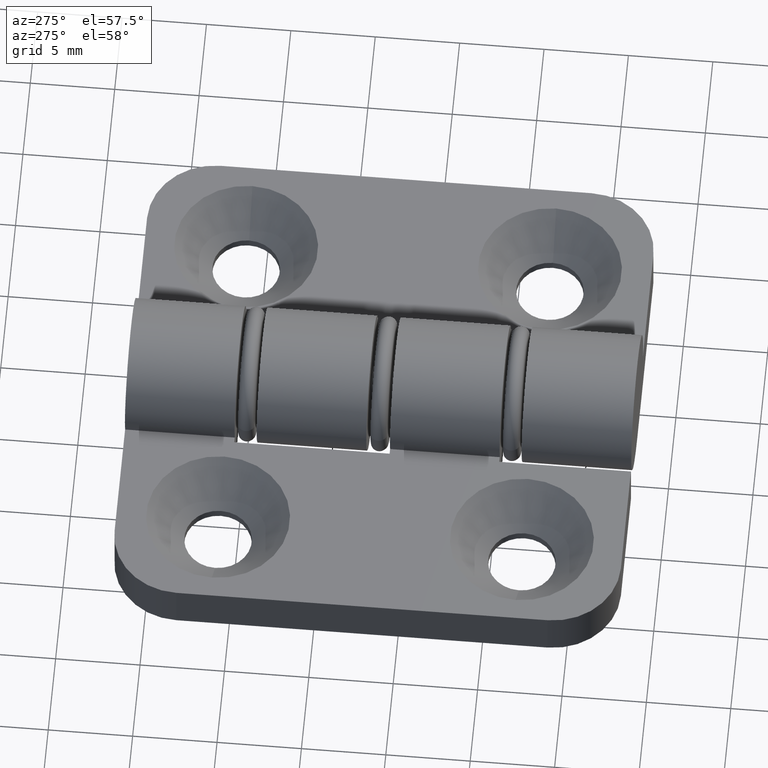
[diagram: clean part render]
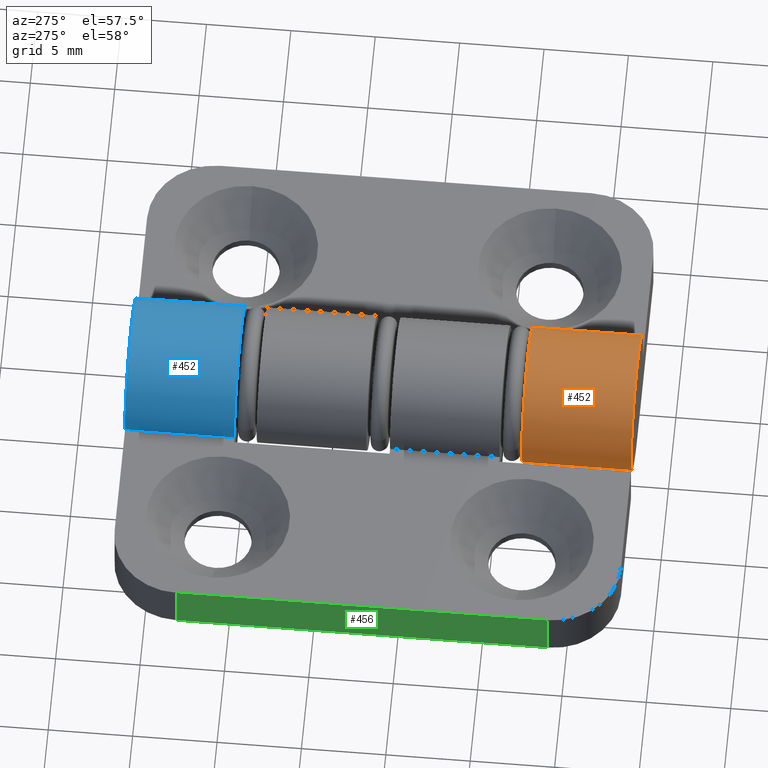
[diagram: same view with three faces highlighted in distinct colors, each labeled with its STEP entity id]
A machine part, auxiliary view with three faces highlighted in distinct colors.
Their STEP definitions:

[orange] entity #452 — the highlighted cylindrical surface (partial cylindrical patch) has radius 4 mm, axis along (0, 1, 0).
#51=LINE('',#741,#79);
#56=LINE('',#758,#84);
#79=VECTOR('',#591,6.5);
#84=VECTOR('',#606,6.5);
#106=CYLINDRICAL_SURFACE('',#498,4.);
#145=FACE_OUTER_BOUND('',#181,.T.);
#181=EDGE_LOOP('',(#369,#370,#371,#372));
#212=CIRCLE('',#484,4.);
#222=CIRCLE('',#499,4.);
#240=VERTEX_POINT('',#707);
#241=VERTEX_POINT('',#709);
#253=VERTEX_POINT('',#740);
#260=VERTEX_POINT('',#757);
#282=EDGE_CURVE('',#240,#241,#212,.T.);
#296=EDGE_CURVE('',#253,#240,#51,.T.);
#305=EDGE_CURVE('',#260,#241,#56,.T.);
#306=EDGE_CURVE('',#260,#253,#222,.T.);
#369=ORIENTED_EDGE('',*,*,#282,.T.);
#370=ORIENTED_EDGE('',*,*,#305,.F.);
#371=ORIENTED_EDGE('',*,*,#306,.T.);
#372=ORIENTED_EDGE('',*,*,#296,.T.);
#452=ADVANCED_FACE('',(#145),#106,.T.);
#484=AXIS2_PLACEMENT_3D('',#711,#563,#564);
#498=AXIS2_PLACEMENT_3D('',#756,#604,#605);
#499=AXIS2_PLACEMENT_3D('',#759,#607,#608);
#563=DIRECTION('center_axis',(0.,-1.,0.));
#564=DIRECTION('ref_axis',(0.,0.,-1.));
#591=DIRECTION('',(0.,1.,0.));
#604=DIRECTION('center_axis',(0.,1.,0.));
#605=DIRECTION('ref_axis',(0.,0.,-1.));
#606=DIRECTION('',(0.,1.,0.));
#607=DIRECTION('center_axis',(0.,1.,0.));
#608=DIRECTION('ref_axis',(0.,0.,-1.));
#707=CARTESIAN_POINT('',(-11.1270166537926,6.5,3.));
#709=CARTESIAN_POINT('',(-15.,6.5,0.));
#711=CARTESIAN_POINT('Origin',(-15.,6.5,4.));
#740=CARTESIAN_POINT('',(-11.1270166537926,0.,3.));
#741=CARTESIAN_POINT('',(-11.1270166537926,0.,3.));
#756=CARTESIAN_POINT('Origin',(-15.,0.,4.));
#757=CARTESIAN_POINT('',(-15.,0.,0.));
#758=CARTESIAN_POINT('',(-15.,0.,0.));
#759=CARTESIAN_POINT('Origin',(-15.,0.,4.));

[blue] entity #452 — the highlighted cylindrical surface (partial cylindrical patch) has radius 4 mm, axis along (-0, -1, -0).
#51=LINE('',#741,#79);
#56=LINE('',#758,#84);
#79=VECTOR('',#591,6.5);
#84=VECTOR('',#606,6.5);
#106=CYLINDRICAL_SURFACE('',#498,4.);
#145=FACE_OUTER_BOUND('',#181,.T.);
#181=EDGE_LOOP('',(#369,#370,#371,#372));
#212=CIRCLE('',#484,4.);
#222=CIRCLE('',#499,4.);
#240=VERTEX_POINT('',#707);
#241=VERTEX_POINT('',#709);
#253=VERTEX_POINT('',#740);
#260=VERTEX_POINT('',#757);
#282=EDGE_CURVE('',#240,#241,#212,.T.);
#296=EDGE_CURVE('',#253,#240,#51,.T.);
#305=EDGE_CURVE('',#260,#241,#56,.T.);
#306=EDGE_CURVE('',#260,#253,#222,.T.);
#369=ORIENTED_EDGE('',*,*,#282,.T.);
#370=ORIENTED_EDGE('',*,*,#305,.F.);
#371=ORIENTED_EDGE('',*,*,#306,.T.);
#372=ORIENTED_EDGE('',*,*,#296,.T.);
#452=ADVANCED_FACE('',(#145),#106,.T.);
#484=AXIS2_PLACEMENT_3D('',#711,#563,#564);
#498=AXIS2_PLACEMENT_3D('',#756,#604,#605);
#499=AXIS2_PLACEMENT_3D('',#759,#607,#608);
#563=DIRECTION('center_axis',(0.,-1.,0.));
#564=DIRECTION('ref_axis',(0.,0.,-1.));
#591=DIRECTION('',(0.,1.,0.));
#604=DIRECTION('center_axis',(0.,1.,0.));
#605=DIRECTION('ref_axis',(0.,0.,-1.));
#606=DIRECTION('',(0.,1.,0.));
#607=DIRECTION('center_axis',(0.,1.,0.));
#608=DIRECTION('ref_axis',(0.,0.,-1.));
#707=CARTESIAN_POINT('',(-11.1270166537926,6.5,3.));
#709=CARTESIAN_POINT('',(-15.,6.5,0.));
#711=CARTESIAN_POINT('Origin',(-15.,6.5,4.));
#740=CARTESIAN_POINT('',(-11.1270166537926,0.,3.));
#741=CARTESIAN_POINT('',(-11.1270166537926,0.,3.));
#756=CARTESIAN_POINT('Origin',(-15.,0.,4.));
#757=CARTESIAN_POINT('',(-15.,0.,0.));
#758=CARTESIAN_POINT('',(-15.,0.,0.));
#759=CARTESIAN_POINT('Origin',(-15.,0.,4.));

[green] entity #456 — the highlighted planar face has unit normal (-1, 0, -0).
#53=LINE('',#747,#81);
#59=LINE('',#770,#87);
#60=LINE('',#773,#88);
#61=LINE('',#774,#89);
#81=VECTOR('',#595,22.);
#87=VECTOR('',#621,3.);
#88=VECTOR('',#624,3.);
#89=VECTOR('',#625,22.);
#149=FACE_OUTER_BOUND('',#186,.T.);
#186=EDGE_LOOP('',(#383,#384,#385,#386));
#255=VERTEX_POINT('',#744);
#256=VERTEX_POINT('',#746);
#262=VERTEX_POINT('',#766);
#264=VERTEX_POINT('',#772);
#299=EDGE_CURVE('',#255,#256,#53,.T.);
#311=EDGE_CURVE('',#256,#262,#59,.T.);
#312=EDGE_CURVE('',#264,#255,#60,.T.);
#313=EDGE_CURVE('',#264,#262,#61,.T.);
#383=ORIENTED_EDGE('',*,*,#311,.F.);
#384=ORIENTED_EDGE('',*,*,#299,.F.);
#385=ORIENTED_EDGE('',*,*,#312,.F.);
#386=ORIENTED_EDGE('',*,*,#313,.T.);
#436=PLANE('',#505);
#456=ADVANCED_FACE('',(#149),#436,.T.);
#505=AXIS2_PLACEMENT_3D('',#771,#622,#623);
#595=DIRECTION('',(0.,1.,0.));
#621=DIRECTION('',(0.,0.,-1.));
#622=DIRECTION('center_axis',(1.,0.,0.));
#623=DIRECTION('ref_axis',(0.,0.,-1.));
#624=DIRECTION('',(0.,0.,1.));
#625=DIRECTION('',(0.,1.,0.));
#744=CARTESIAN_POINT('',(0.,4.,3.));
#746=CARTESIAN_POINT('',(0.,26.,3.));
#747=CARTESIAN_POINT('',(0.,0.,3.));
#766=CARTESIAN_POINT('',(0.,26.,0.));
#770=CARTESIAN_POINT('',(0.,26.,2.7389291403498));
#771=CARTESIAN_POINT('Origin',(0.,0.,3.));
#772=CARTESIAN_POINT('',(0.,4.,0.));
#773=CARTESIAN_POINT('',(0.,4.,2.7389291403498));
#774=CARTESIAN_POINT('',(0.,0.,0.));